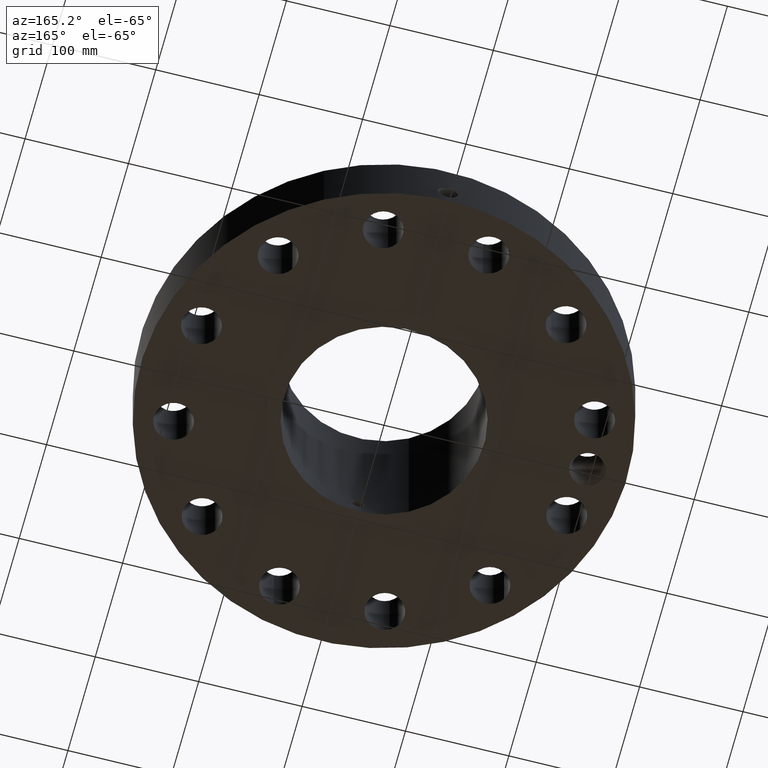
[diagram: clean part render]
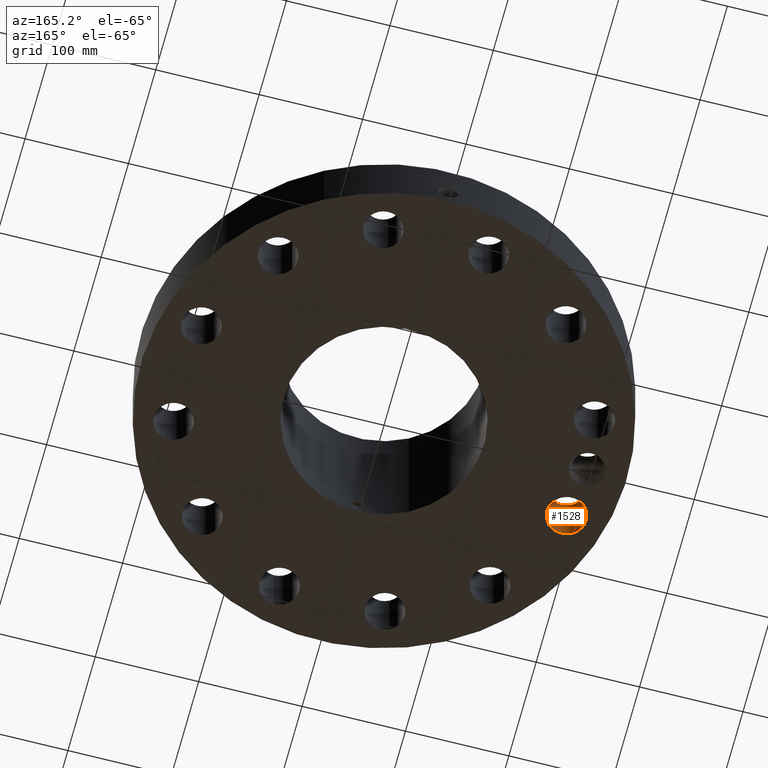
[diagram: same view with one face highlighted and labeled with its STEP entity id]
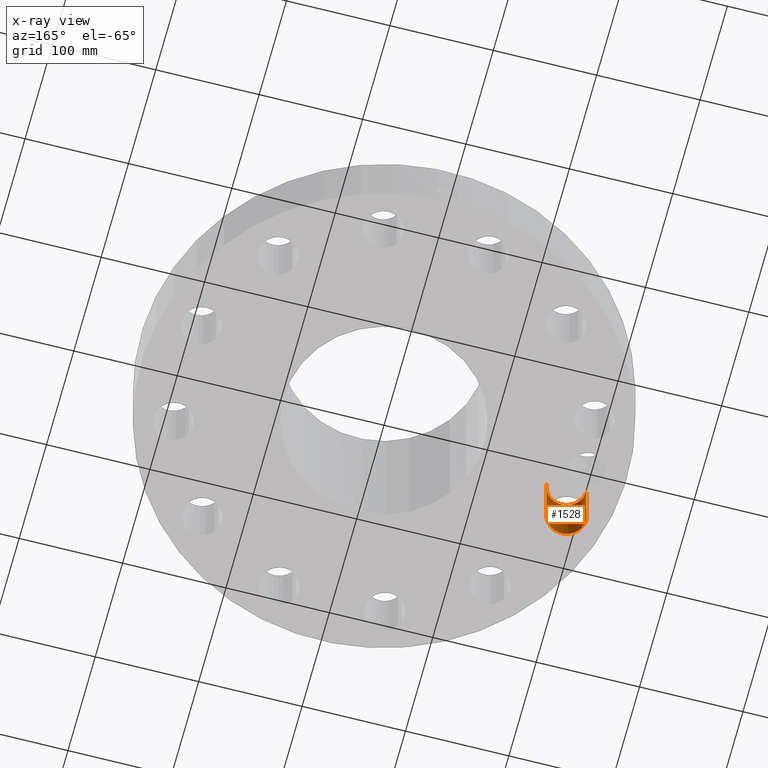
[diagram: x-ray of the same camera — body ghosted, the highlighted face saturated]
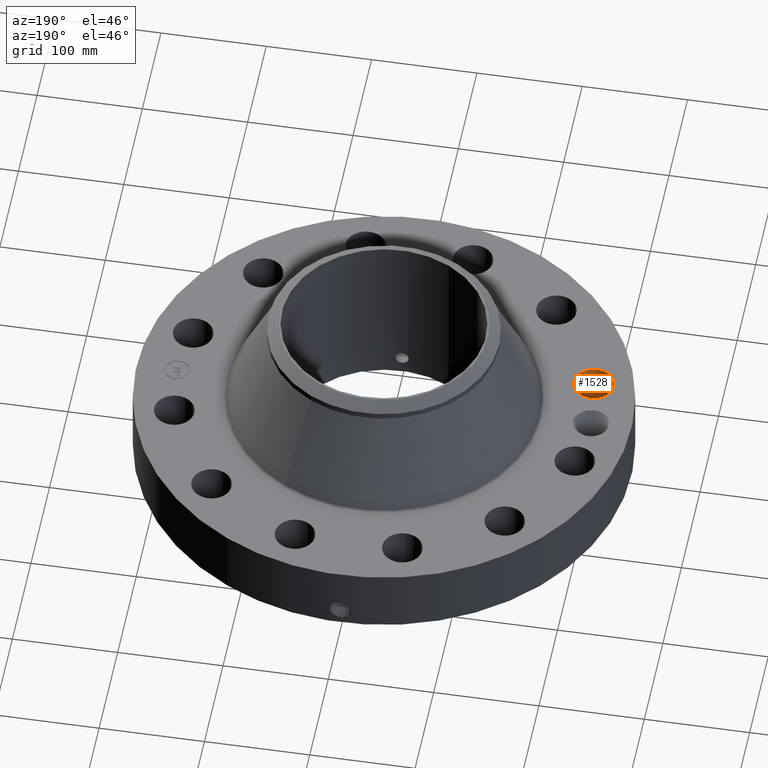
[diagram: same view with one face highlighted and labeled with its STEP entity id]
A machine part, auxiliary view. The second image highlights one B-rep face of the part: STEP entity #1528.
The next image is the same camera in x-ray: the body ghosted, the highlighted face saturated — about 0% of this face is hidden behind the body in this view.
A second angle (auxiliary view) of the same face is appended — the face is thin or edge-on in the first view.
In plain terms, the highlighted cylindrical surface (edge-blend (fillet) strip) has radius 19.05 mm, axis along (-0, 0, -1).
Its self-contained STEP definition (entity closure, byte-faithful):
#343=AXIS2_PLACEMENT_3D('Circle Axis2P3D',#341,#342,$) ;
#741=AXIS2_PLACEMENT_3D('Circle Axis2P3D',#739,#740,$) ;
#1510=AXIS2_PLACEMENT_3D('Cylinder Axis2P3D',#1507,#1508,#1509) ;
#341=CARTESIAN_POINT('Axis2P3D Location',(-7.48592515377,-2.00584759955,0.250000000001)) ;
#345=CARTESIAN_POINT('Vertex',(-6.7361339824,-1.98815016058,0.250000000001)) ;
#347=CARTESIAN_POINT('Vertex',(-8.23571632514,-2.02354503852,0.250000000001)) ;
#734=CARTESIAN_POINT('Vertex',(-8.23571632514,-2.02354503852,2.75000000001)) ;
#736=CARTESIAN_POINT('Vertex',(-6.7361339824,-1.98815016058,2.75000000001)) ;
#739=CARTESIAN_POINT('Axis2P3D Location',(-7.48592515377,-2.00584759955,2.75000000001)) ;
#1507=CARTESIAN_POINT('Axis2P3D Location',(-7.48592515377,-2.00584759955,2.74606299214)) ;
#1512=CARTESIAN_POINT('Line Origine',(-6.7361339824,-1.98815016058,1.50000000001)) ;
#1517=CARTESIAN_POINT('Line Origine',(-8.23571632514,-2.02354503852,1.50000000001)) ;
#342=DIRECTION('Axis2P3D Direction',(0.,0.,-0.0393700787402)) ;
#740=DIRECTION('Axis2P3D Direction',(0.,0.,-0.0393700787402)) ;
#1508=DIRECTION('Axis2P3D Direction',(-0.,0.,-0.0393700787402)) ;
#1509=DIRECTION('Axis2P3D XDirection',(-0.039359116607,-0.000928999420902,0.)) ;
#1513=DIRECTION('Vector Direction',(0.,0.,-0.0393700787402)) ;
#1518=DIRECTION('Vector Direction',(0.,0.,-0.0393700787402)) ;
#1514=VECTOR('Line Direction',#1513,0.0393700787402) ;
#1519=VECTOR('Line Direction',#1518,0.0393700787402) ;
#1523=ORIENTED_EDGE('',*,*,#1516,.F.) ;
#1524=ORIENTED_EDGE('',*,*,#349,.T.) ;
#1525=ORIENTED_EDGE('',*,*,#1521,.T.) ;
#1526=ORIENTED_EDGE('',*,*,#743,.F.) ;
#1528=ADVANCED_FACE('PartBody',(#1527),#1511,.F.) ;
#344=CIRCLE('generated circle',#343,0.750000000003) ;
#742=CIRCLE('generated circle',#741,0.750000000003) ;
#1511=CYLINDRICAL_SURFACE('generated cylinder',#1510,0.750000000003) ;
#349=EDGE_CURVE('',#346,#348,#344,.T.) ;
#743=EDGE_CURVE('',#737,#735,#742,.T.) ;
#1516=EDGE_CURVE('',#346,#737,#1515,.F.) ;
#1521=EDGE_CURVE('',#348,#735,#1520,.F.) ;
#1522=EDGE_LOOP('',(#1523,#1524,#1525,#1526)) ;
#1527=FACE_OUTER_BOUND('',#1522,.T.) ;
#1515=LINE('Line',#1512,#1514) ;
#1520=LINE('Line',#1517,#1519) ;
#346=VERTEX_POINT('',#345) ;
#348=VERTEX_POINT('',#347) ;
#735=VERTEX_POINT('',#734) ;
#737=VERTEX_POINT('',#736) ;